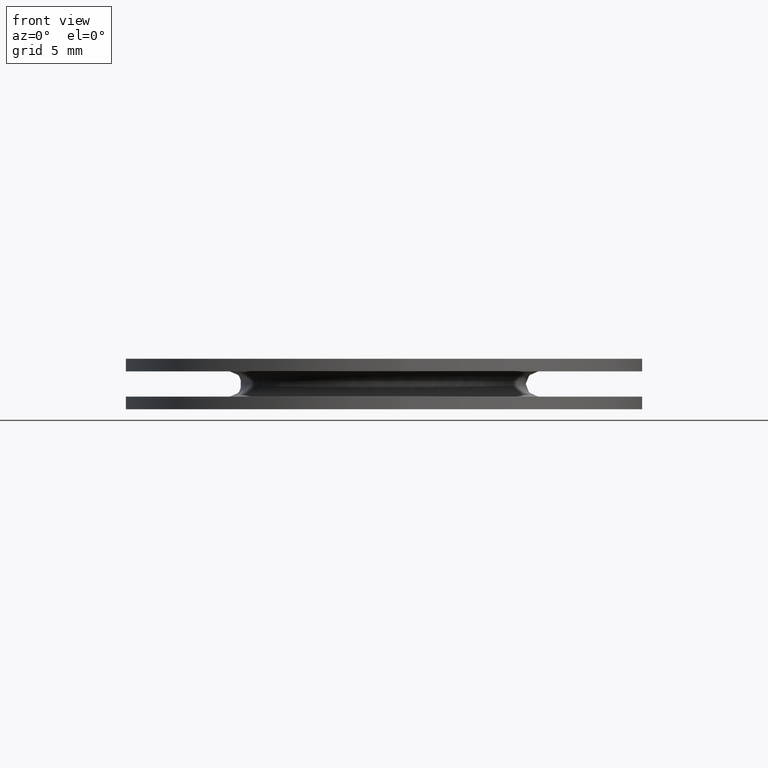
[diagram: clean part render]
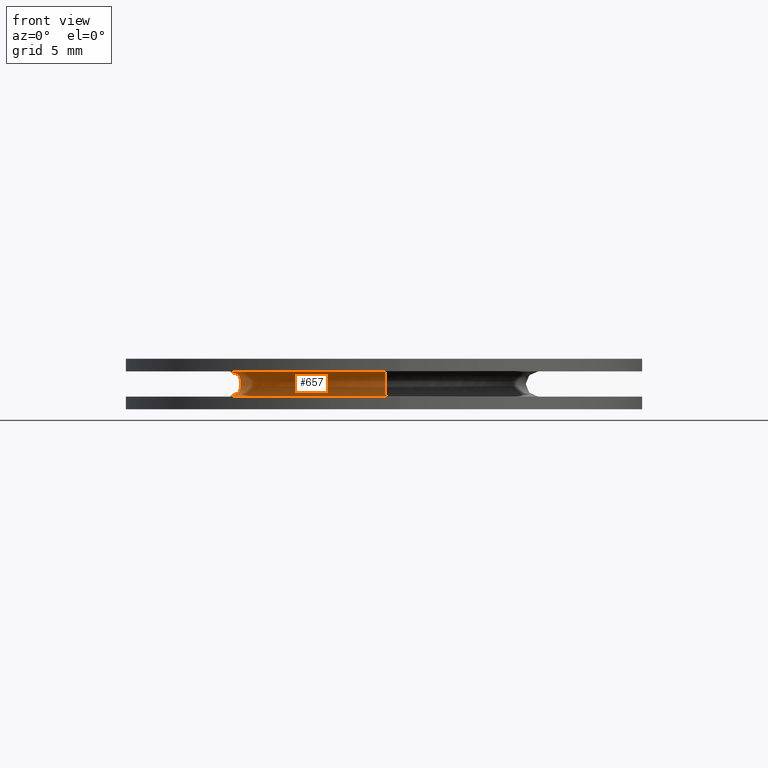
[diagram: same view with one face highlighted and labeled with its STEP entity id]
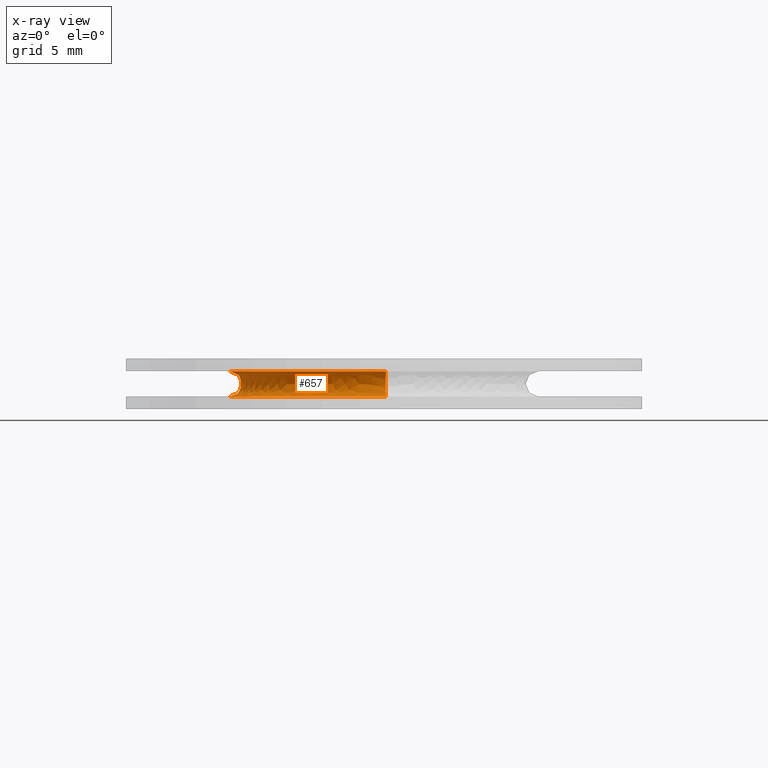
[diagram: x-ray of the same camera — body ghosted, the highlighted face saturated]
A machine part, front view. The second image highlights one B-rep face of the part: STEP entity #657.
The next image is the same camera in x-ray: the body ghosted, the highlighted face saturated — about 0% of this face is hidden behind the body in this view.
In plain terms, the highlighted face is a freeform B-spline surface patch.
Its self-contained STEP definition (entity closure, byte-faithful):
#459=CARTESIAN_POINT('',(-0.425372906173854,6.085151633952344,1.500000000000000));
#460=VERTEX_POINT('',#459);
#478=CARTESIAN_POINT('',(0.076651915141022,-6.099520192318012,1.499999999998727));
#479=VERTEX_POINT('',#478);
#493=CARTESIAN_POINT('',(0.076652855855130,-6.099519369557932,0.500000000000000));
#494=VERTEX_POINT('',#493);
#495=CARTESIAN_POINT('',(0.076652855855130,-6.099519369557932,0.500000000000000));
#496=CARTESIAN_POINT('',(0.070369835912816,-5.599558847462412,0.500000000012765));
#497=CARTESIAN_POINT('',(0.070369835912816,-5.599558847462412,1.000000000000000));
#498=CARTESIAN_POINT('',(0.070369835912816,-5.599558847462411,1.500000810868345));
#499=CARTESIAN_POINT('',(0.076651915141022,-6.099520192318012,1.499999999998728));
#507=(BOUNDED_CURVE()B_SPLINE_CURVE(2,(#495,#496,#497,#498,#499),.UNSPECIFIED.,.F.,.U.)B_SPLINE_CURVE_WITH_KNOTS((3,2,3),(-3.781082537376819,-2.0,-0.218915492515559),.UNSPECIFIED.)CURVE()GEOMETRIC_REPRESENTATION_ITEM()RATIONAL_B_SPLINE_CURVE((0.930396133914804,0.682054299135544,1.0,0.682053947446481,0.930396683311869))REPRESENTATION_ITEM(''));
#508=EDGE_CURVE('',#494,#479,#507,.T.);
#525=CARTESIAN_POINT('',(-0.425372904344310,6.085151607728106,0.500000000000000));
#526=VERTEX_POINT('',#525);
#542=CARTESIAN_POINT('',(-0.425372904344310,6.085151607728106,0.500000000000000));
#543=CARTESIAN_POINT('',(-0.390506278555729,5.586368771072093,0.500000000527002));
#544=CARTESIAN_POINT('',(-0.390506278555729,5.586368771072094,1.000000000000000));
#545=CARTESIAN_POINT('',(-0.390506278555729,5.586368771072092,1.500000025869017));
#546=CARTESIAN_POINT('',(-0.425372906173854,6.085151633952344,1.499999999999999));
#554=(BOUNDED_CURVE()B_SPLINE_CURVE(2,(#542,#543,#544,#545,#546),.UNSPECIFIED.,.F.,.U.)B_SPLINE_CURVE_WITH_KNOTS((3,2,3),(-3.781082536127432,-2.0,-0.218917399741063),.UNSPECIFIED.)CURVE()GEOMETRIC_REPRESENTATION_ITEM()RATIONAL_B_SPLINE_CURVE((0.909467617598506,0.666712034080263,0.977505800795127,0.666712022889501,0.909467635080326))REPRESENTATION_ITEM(''));
#555=EDGE_CURVE('',#526,#460,#554,.T.);
#560=CARTESIAN_POINT('',(0.077544686311252,-6.170485246630920,0.505062580793688));
#561=CARTESIAN_POINT('',(-6.092940560319667,-6.248029932942171,0.505062580793688));
#562=CARTESIAN_POINT('',(-6.170485246630920,-0.077544686311252,0.505062580793688));
#563=CARTESIAN_POINT('',(-6.243714837894975,5.749574282201645,0.505062580793688));
#564=CARTESIAN_POINT('',(-0.430321976460137,6.155950320936680,0.505062580793688));
#565=CARTESIAN_POINT('',(0.070369835912816,-5.599558847462413,0.423188206711083));
#566=CARTESIAN_POINT('',(-5.529189011549597,-5.669928683375229,0.423188206711083));
#567=CARTESIAN_POINT('',(-5.599558847462413,-0.070369835912816,0.423188206711083));
#568=CARTESIAN_POINT('',(-5.666012844071935,5.217592823615139,0.423188206711083));
#569=CARTESIAN_POINT('',(-0.390506278555729,5.586368771072093,0.423188206711083));
#570=CARTESIAN_POINT('',(0.070369835912816,-5.599558847462412,1.000000000000000));
#571=CARTESIAN_POINT('',(-5.529189011549596,-5.669928683375228,1.000000000000000));
#572=CARTESIAN_POINT('',(-5.599558847462412,-0.070369835912816,1.000000000000000));
#573=CARTESIAN_POINT('',(-5.666012844071934,5.217592823615139,1.000000000000000));
#574=CARTESIAN_POINT('',(-0.390506278555729,5.586368771072094,1.000000000000000));
#575=CARTESIAN_POINT('',(0.070369835912816,-5.599558847462413,1.576812656901735));
#576=CARTESIAN_POINT('',(-5.529189011549597,-5.669928683375229,1.576812656901736));
#577=CARTESIAN_POINT('',(-5.599558847462413,-0.070369835912816,1.576812656901735));
#578=CARTESIAN_POINT('',(-5.666012844071934,5.217592823615140,1.576812656901735));
#579=CARTESIAN_POINT('',(-0.390506278555729,5.586368771072093,1.576812656901735));
#580=CARTESIAN_POINT('',(0.077544695528760,-6.170485980098318,1.494937314022000));
#581=CARTESIAN_POINT('',(-6.092941284569554,-6.248030675627076,1.494937314021999));
#582=CARTESIAN_POINT('',(-6.170485980098318,-0.077544695528761,1.494937314022000));
#583=CARTESIAN_POINT('',(-6.243715580066960,5.749574965636601,1.494937314021999));
#584=CARTESIAN_POINT('',(-0.430322027611242,6.155951052676354,1.494937314021999));
#592=(BOUNDED_SURFACE()B_SPLINE_SURFACE(2,2,((#560,#565,#570,#575,#580),(#561,#566,#571,#576,#581),(#562,#567,#572,#577,#582),(#563,#568,#573,#578,#583),(#564,#569,#574,#579,#584)),.UNSPECIFIED.,.F.,.F.,.U.)B_SPLINE_SURFACE_WITH_KNOTS((3,2,3),(3,2,3),(0.0,10.224403193453700,20.039830259169239),(0.0,0.913128015422519,1.826256919891501),.UNSPECIFIED.)GEOMETRIC_REPRESENTATION_ITEM()RATIONAL_B_SPLINE_SURFACE(((0.985666455333557,0.650291488394807,1.0,0.650291147909016,0.985667108394725),(0.696971434554465,0.459825521191861,0.707106781186548,0.459825280432049,0.696971896338446),(0.985666455333557,0.650291488394807,1.0,0.650291147909016,0.985667108394725),(0.708519235385629,0.467444159879979,0.718822509939086,0.467443915131128,0.708519704820697),(0.963494677737722,0.635663702113621,0.977505800795127,0.635663369286785,0.963495316108803)))REPRESENTATION_ITEM('')SURFACE());
#593=CARTESIAN_POINT('',(-6.100001026179940,0.0,1.500000000000000));
#594=VERTEX_POINT('',#593);
#595=CARTESIAN_POINT('',(-6.100001026179940,0.0,1.500000000000000));
#596=CARTESIAN_POINT('',(-6.100001026179942,5.688475725247683,1.500000000000000));
#597=CARTESIAN_POINT('',(-0.425372906173854,6.085151633952345,1.500000000000000));
#605=(BOUNDED_CURVE()B_SPLINE_CURVE(2,(#595,#596,#597),.UNSPECIFIED.,.F.,.U.)B_SPLINE_CURVE_WITH_KNOTS((3,3),(0.0,0.237833686534251),.UNSPECIFIED.)CURVE()GEOMETRIC_REPRESENTATION_ITEM()RATIONAL_B_SPLINE_CURVE((1.0,0.721360504034855,0.972879876385197))REPRESENTATION_ITEM(''));
#606=EDGE_CURVE('',#594,#460,#605,.T.);
#607=ORIENTED_EDGE('',*,*,#606,.T.);
#608=ORIENTED_EDGE('',*,*,#555,.F.);
#609=CARTESIAN_POINT('',(-6.100001000000000,0.0,0.500000000000000));
#610=VERTEX_POINT('',#609);
#611=CARTESIAN_POINT('',(-6.100001000000000,0.0,0.500000000000000));
#612=CARTESIAN_POINT('',(-6.100001000000001,5.688475700827179,0.500000000000000));
#613=CARTESIAN_POINT('',(-0.425372904344310,6.085151607728106,0.500000000000000));
#621=(BOUNDED_CURVE()B_SPLINE_CURVE(2,(#611,#612,#613),.UNSPECIFIED.,.F.,.U.)B_SPLINE_CURVE_WITH_KNOTS((3,3),(0.0,0.237833686534047),.UNSPECIFIED.)CURVE()GEOMETRIC_REPRESENTATION_ITEM()RATIONAL_B_SPLINE_CURVE((1.0,0.721360504035093,0.972879876384767))REPRESENTATION_ITEM(''));
#622=EDGE_CURVE('',#610,#526,#621,.T.);
#623=ORIENTED_EDGE('',*,*,#622,.F.);
#624=CARTESIAN_POINT('',(0.076652855855130,-6.099519369557933,0.500000000000000));
#625=CARTESIAN_POINT('',(0.038327941034515,-6.100000999999999,0.500000000000000));
#626=CARTESIAN_POINT('',(0.0,-6.100001000000000,0.500000000000000));
#627=CARTESIAN_POINT('',(-6.100001000000002,-6.100001000000002,0.500000000000000));
#628=CARTESIAN_POINT('',(-6.100001000000000,0.0,0.500000000000000));
#636=(BOUNDED_CURVE()B_SPLINE_CURVE(2,(#624,#625,#626,#627,#628),.UNSPECIFIED.,.F.,.U.)B_SPLINE_CURVE_WITH_KNOTS((3,2,3),(0.747784295921687,0.750000000000000,1.0),.UNSPECIFIED.)CURVE()GEOMETRIC_REPRESENTATION_ITEM()RATIONAL_B_SPLINE_CURVE((0.994854295643917,0.997404141202259,1.0,0.707106781186548,1.0))REPRESENTATION_ITEM(''));
#637=EDGE_CURVE('',#494,#610,#636,.T.);
#638=ORIENTED_EDGE('',*,*,#637,.F.);
#639=ORIENTED_EDGE('',*,*,#508,.T.);
#640=CARTESIAN_POINT('',(0.076651915141022,-6.099520192318013,1.499999999998727));
#641=CARTESIAN_POINT('',(0.038327465690606,-6.100001026179940,1.500000000000000));
#642=CARTESIAN_POINT('',(0.0,-6.100001026179940,1.500000000000000));
#643=CARTESIAN_POINT('',(-6.100001026179941,-6.100001026179941,1.500000000000000));
#644=CARTESIAN_POINT('',(-6.100001026179940,0.0,1.500000000000000));
#652=(BOUNDED_CURVE()B_SPLINE_CURVE(2,(#640,#641,#642,#643,#644),.UNSPECIFIED.,.F.,.U.)B_SPLINE_CURVE_WITH_KNOTS((3,2,3),(0.747784323339047,0.750000000000000,1.0),.UNSPECIFIED.)CURVE()GEOMETRIC_REPRESENTATION_ITEM()RATIONAL_B_SPLINE_CURVE((0.994854358748050,0.997404173323695,1.0,0.707106781186548,1.0))REPRESENTATION_ITEM(''));
#653=EDGE_CURVE('',#479,#594,#652,.T.);
#654=ORIENTED_EDGE('',*,*,#653,.T.);
#655=EDGE_LOOP('',(#607,#608,#623,#638,#639,#654));
#656=FACE_OUTER_BOUND('',#655,.T.);
#657=ADVANCED_FACE('',(#656),#592,.F.);